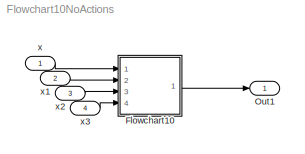
MODEL Flowchart10NoActions
KIND model
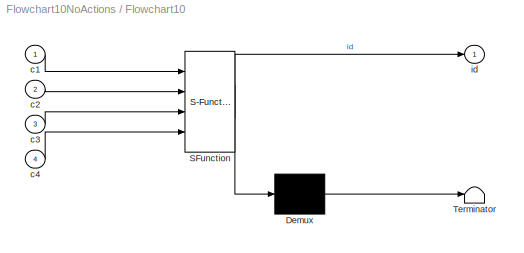
BLOCK [SubSystem] Flowchart10
  ErrorFcn = Stateflow.Translate.translate
  PermitHierarchicalResolution = ExplicitOnly
  Ports = [4, 1]
  RequestExecContextInheritance = off
  SFBlockType = Chart
  SID = 2
  TreatAsAtomicUnit = on
  Variant = off
BLOCK [Demux] Flowchart10/ Demux 
  Outputs = 1
  Ports = [1, 1]
  SID = 2::13
BLOCK [S-Function] Flowchart10/ SFunction 
  EnableBusSupport = on
  FunctionName = sf_sfun
  PortCounts = [4 2]
  Ports = [4, 2]
  SFcnIsStateOwnerBlock = off
  SFunctionDeploymentMode = off
  SID = 2::12
  Tag = Stateflow S-Function Flowchart10NoActions 1
BLOCK [Terminator] Flowchart10/ Terminator 
  SID = 2::14
BLOCK [Inport] Flowchart10/c1
  IconDisplay = Port number
  SID = 2::15
BLOCK [Inport] Flowchart10/c2
  IconDisplay = Port number
  Port = 2
  SID = 2::16
BLOCK [Inport] Flowchart10/c3
  IconDisplay = Port number
  Port = 3
  SID = 2::17
BLOCK [Inport] Flowchart10/c4
  IconDisplay = Port number
  Port = 4
  SID = 2::18
BLOCK [Outport] Flowchart10/id
  IconDisplay = Port number
  SID = 2::19
BLOCK [Outport] Out1
  IconDisplay = Port number
  SID = 6
BLOCK [Inport] x
  IconDisplay = Port number
  OutDataTypeStr = boolean
  SID = 5
BLOCK [Inport] x1
  IconDisplay = Port number
  OutDataTypeStr = boolean
  Port = 2
  SID = 7
BLOCK [Inport] x2
  IconDisplay = Port number
  OutDataTypeStr = boolean
  Port = 3
  SID = 8
BLOCK [Inport] x3
  IconDisplay = Port number
  OutDataTypeStr = boolean
  Port = 4
  SID = 9
LINE Flowchart10/ Demux :1 -> Flowchart10/ Terminator :1
LINE Flowchart10/ SFunction :1 -> Flowchart10/ Demux :1
LINE Flowchart10/ SFunction :2 -> Flowchart10/id:1
LINE Flowchart10/c1:1 -> Flowchart10/ SFunction :1
LINE Flowchart10/c2:1 -> Flowchart10/ SFunction :2
LINE Flowchart10/c3:1 -> Flowchart10/ SFunction :3
LINE Flowchart10/c4:1 -> Flowchart10/ SFunction :4
LINE Flowchart10:1 -> Out1:1
LINE x1:1 -> Flowchart10:2
LINE x2:1 -> Flowchart10:3
LINE x3:1 -> Flowchart10:4
LINE x:1 -> Flowchart10:1
CHART Flowchart10 states=1 transitions=4
  STATE_LABEL 'A'
